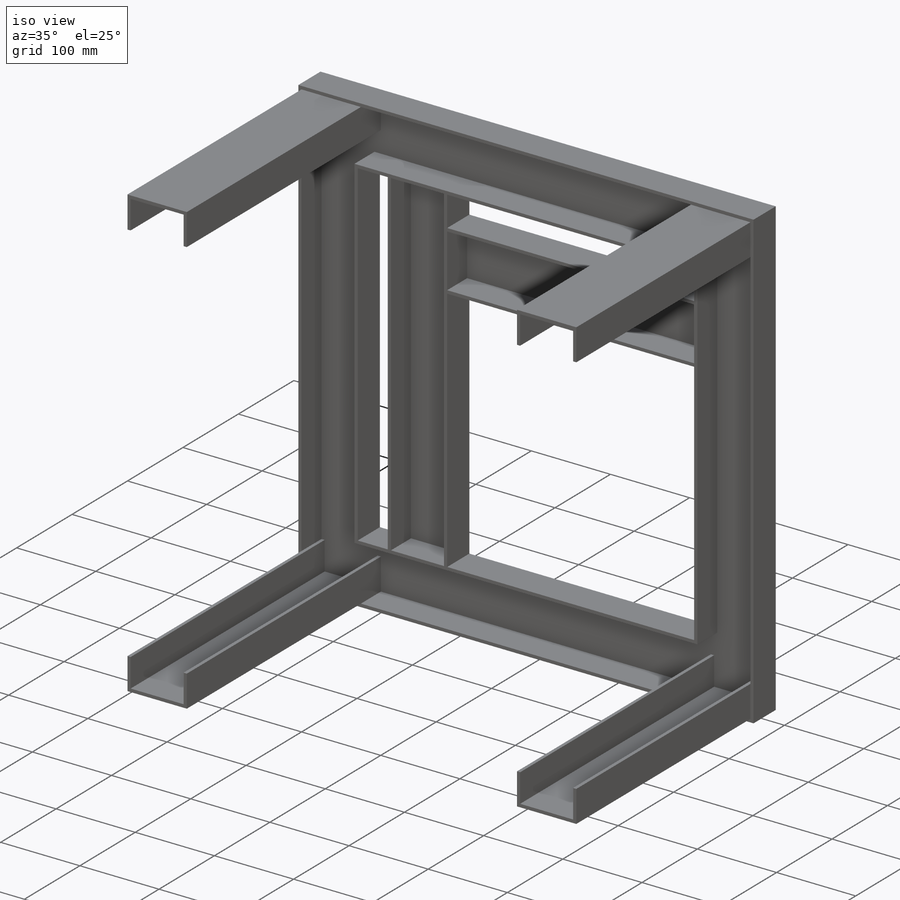
[diagram: iso view]
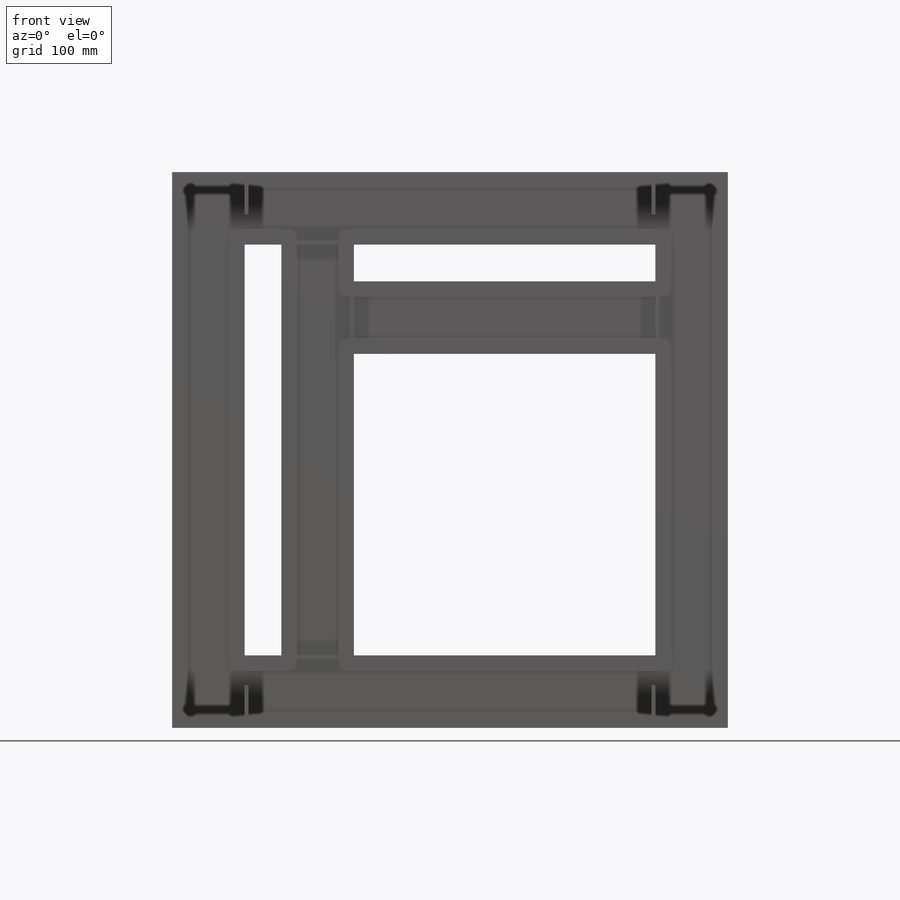
[diagram: front view]
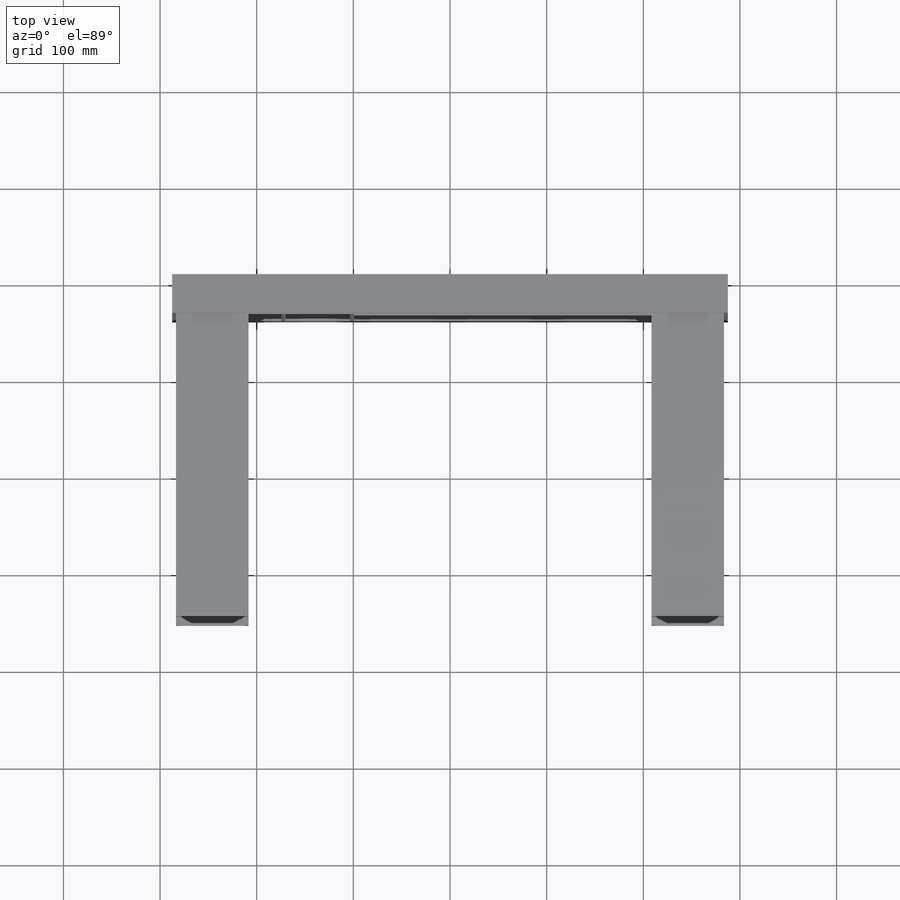
[diagram: top view]
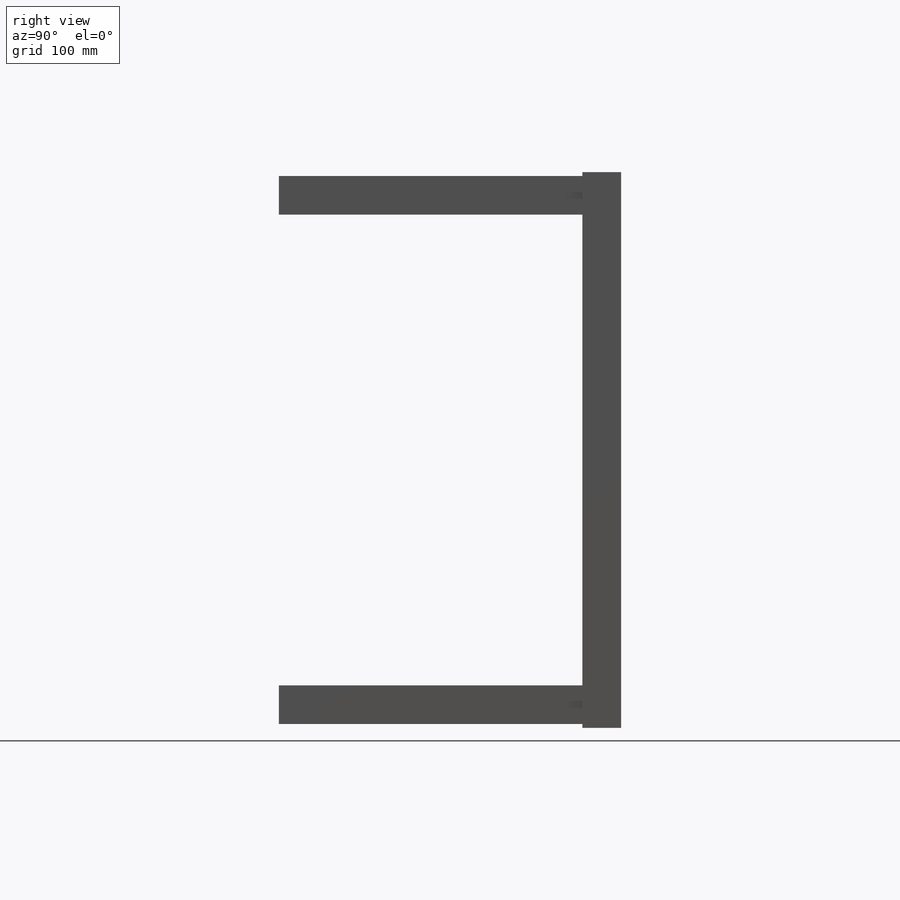
[diagram: right view]
SOLIDWORKS PART (.sldprt)
format: sldprt  version: not decoded by parser v0  size: 313,344 bytes
history: native  units: mm
features: sketch x7, sweep x3, material x1, plane x1, extrude x1, pattern_linear x1, mirror x1 (+13 scaffold rows collapsed)
feature tree (28):
  scaffold x13  (default folders/planes/origin — collapsed)
  material  "Material <not specified>"
  sketch  "Sketch1"  dims[c1.D1=~132.219219mm c1.D2=~191.968428mm c2.D1=500.0mm c2.D2=500.0mm]
  plane  "Plane1"
  sketch  "Sketch2"  dims[D1=37.5mm D2=40.0mm D3=4.0mm D4=4.0mm D5=2.0mm]
  sweep  "Sweep1"
  sketch  "Sketch4"  dims[D1=75.5mm]
  sketch  "Sketch5"  dims[D1=37.5mm D2=4.0mm 4=4.0mm D3=36.0mm]
  sweep  "Sweep3"
  sketch  "Sketch6"  dims[D1=75.5mm]
  sketch  "Sketch7"  dims[D1=37.5mm D2=4.0mm D3=4.0mm]
  sweep  "Sweep4"
  sketch  "Sketch8"  dims[D1=37.5mm D2=40.0mm D3=4.0mm D4=4.0mm D5=37.5mm]
  extrude  "Boss-Extrude1"  Depth=350mm
  pattern_linear  "LPattern1"  Count1=2 Count2=1 Spacing1=492mm Spacing2=10mm
  mirror  "Mirror1"
decode coverage: 9 of 13 modeling features carry decoded parameters
note: ~ marks probable driven/reference dimensions
note: suppression state not decoded; provenance and decode notes live in map.json
